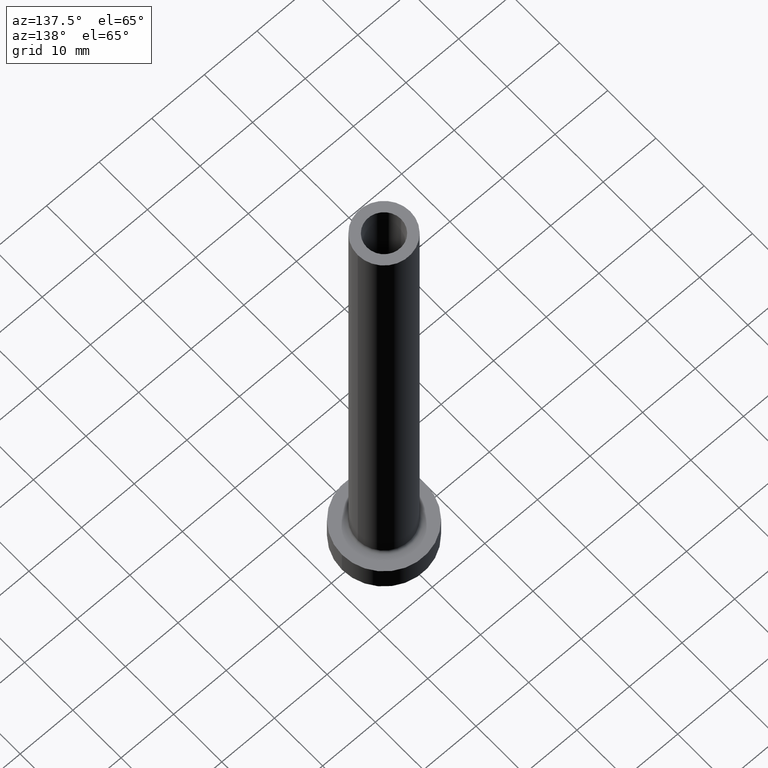
[diagram: clean part render]
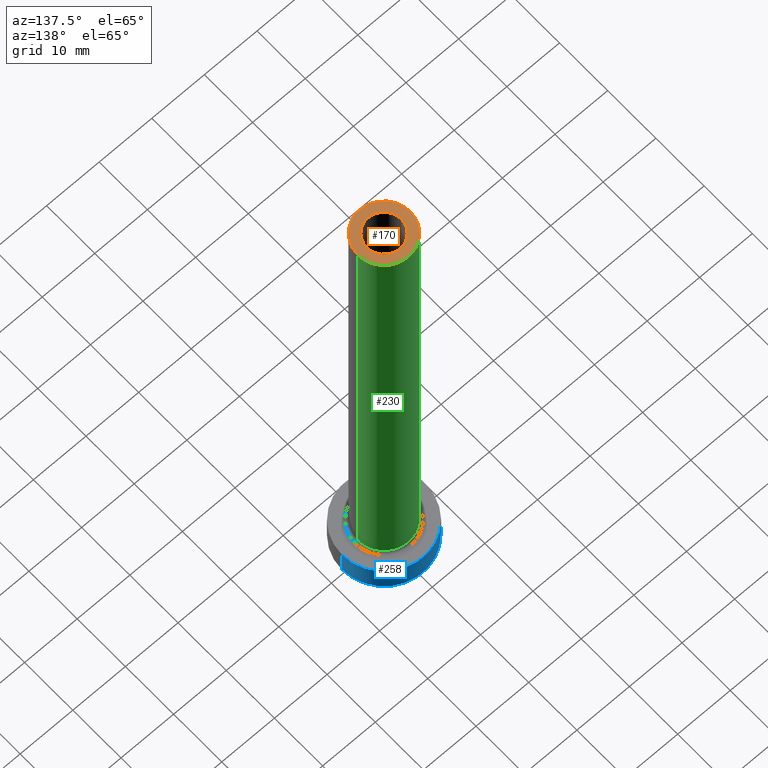
[diagram: same view with three faces highlighted in distinct colors, each labeled with its STEP entity id]
A machine part, auxiliary view with three faces highlighted in distinct colors.
Their STEP definitions:

[orange] entity #170 — the highlighted planar face has unit normal (0, 0, 1).
#4 = VERTEX_POINT ( 'NONE', #99 ) ;
#11 = DIRECTION ( 'NONE',  ( 1.000000000000000000, 0.000000000000000000, 0.000000000000000000 ) ) ;
#22 = VERTEX_POINT ( 'NONE', #244 ) ;
#23 = CIRCLE ( 'NONE', #83, 3.250000000000000444 ) ;
#24 = FACE_OUTER_BOUND ( 'NONE', #318, .T. ) ;
#31 = DIRECTION ( 'NONE',  ( 1.000000000000000000, 0.000000000000000000, -0.000000000000000000 ) ) ;
#33 = CARTESIAN_POINT ( 'NONE',  ( 0.000000000000000000, 0.000000000000000000, 100.0000000000000000 ) ) ;
#35 = DIRECTION ( 'NONE',  ( 0.000000000000000000, 0.000000000000000000, 1.000000000000000000 ) ) ;
#36 = DIRECTION ( 'NONE',  ( 0.000000000000000000, 0.000000000000000000, 1.000000000000000000 ) ) ;
#39 = CARTESIAN_POINT ( 'NONE',  ( 0.000000000000000000, 0.000000000000000000, 100.0000000000000000 ) ) ;
#41 = DIRECTION ( 'NONE',  ( 1.000000000000000000, 0.000000000000000000, 0.000000000000000000 ) ) ;
#53 = AXIS2_PLACEMENT_3D ( 'NONE', #161, #374, #11 ) ;
#73 = DIRECTION ( 'NONE',  ( 1.000000000000000000, 0.000000000000000000, 0.000000000000000000 ) ) ;
#75 = VERTEX_POINT ( 'NONE', #408 ) ;
#83 = AXIS2_PLACEMENT_3D ( 'NONE', #390, #35, #73 ) ;
#99 = CARTESIAN_POINT ( 'NONE',  ( -5.000000000000000000, 0.000000000000000000, 100.0000000000000000 ) ) ;
#109 = CARTESIAN_POINT ( 'NONE',  ( -3.250000000000000444, 0.000000000000000000, 100.0000000000000000 ) ) ;
#121 = CIRCLE ( 'NONE', #53, 5.000000000000000000 ) ;
#124 = ORIENTED_EDGE ( 'NONE', *, *, #393, .T. ) ;
#130 = AXIS2_PLACEMENT_3D ( 'NONE', #39, #355, #173 ) ;
#131 = FACE_BOUND ( 'NONE', #444, .T. ) ;
#150 = EDGE_CURVE ( 'NONE', #409, #22, #23, .T. ) ;
#161 = CARTESIAN_POINT ( 'NONE',  ( 0.000000000000000000, 0.000000000000000000, 100.0000000000000000 ) ) ;
#170 = ADVANCED_FACE ( 'NONE', ( #131, #24 ), #454, .T. ) ;
#173 = DIRECTION ( 'NONE',  ( 1.000000000000000000, 0.000000000000000000, 0.000000000000000000 ) ) ;
#204 = EDGE_CURVE ( 'NONE', #75, #4, #404, .T. ) ;
#244 = CARTESIAN_POINT ( 'NONE',  ( 3.250000000000000444, 3.980102097228897245E-16, 100.0000000000000000 ) ) ;
#249 = ORIENTED_EDGE ( 'NONE', *, *, #204, .T. ) ;
#264 = AXIS2_PLACEMENT_3D ( 'NONE', #33, #36, #41 ) ;
#277 = ORIENTED_EDGE ( 'NONE', *, *, #150, .F. ) ;
#289 = EDGE_CURVE ( 'NONE', #22, #409, #321, .T. ) ;
#318 = EDGE_LOOP ( 'NONE', ( #124, #249 ) ) ;
#321 = CIRCLE ( 'NONE', #130, 3.250000000000000444 ) ;
#350 = AXIS2_PLACEMENT_3D ( 'NONE', #446, #354, #31 ) ;
#354 = DIRECTION ( 'NONE',  ( 0.000000000000000000, 0.000000000000000000, 1.000000000000000000 ) ) ;
#355 = DIRECTION ( 'NONE',  ( 0.000000000000000000, 0.000000000000000000, 1.000000000000000000 ) ) ;
#374 = DIRECTION ( 'NONE',  ( 0.000000000000000000, 0.000000000000000000, 1.000000000000000000 ) ) ;
#390 = CARTESIAN_POINT ( 'NONE',  ( 0.000000000000000000, 0.000000000000000000, 100.0000000000000000 ) ) ;
#393 = EDGE_CURVE ( 'NONE', #4, #75, #121, .T. ) ;
#404 = CIRCLE ( 'NONE', #264, 5.000000000000000000 ) ;
#408 = CARTESIAN_POINT ( 'NONE',  ( 5.000000000000000000, 6.123233995736766282E-16, 100.0000000000000000 ) ) ;
#409 = VERTEX_POINT ( 'NONE', #109 ) ;
#444 = EDGE_LOOP ( 'NONE', ( #277, #459 ) ) ;
#446 = CARTESIAN_POINT ( 'NONE',  ( 0.000000000000000000, 0.000000000000000000, 100.0000000000000000 ) ) ;
#454 = PLANE ( 'NONE',  #350 ) ;
#459 = ORIENTED_EDGE ( 'NONE', *, *, #289, .F. ) ;

[blue] entity #258 — the highlighted cylindrical surface (partial cylindrical patch) has radius 8 mm, axis along (-0, -0, -1).
#5 = FACE_OUTER_BOUND ( 'NONE', #219, .T. ) ;
#14 = LINE ( 'NONE', #58, #351 ) ;
#16 = VERTEX_POINT ( 'NONE', #456 ) ;
#29 = CIRCLE ( 'NONE', #422, 8.000000000000000000 ) ;
#47 = DIRECTION ( 'NONE',  ( 1.000000000000000000, 0.000000000000000000, 0.000000000000000000 ) ) ;
#58 = CARTESIAN_POINT ( 'NONE',  ( -8.000000000000000000, 0.000000000000000000, 5.000000000000000000 ) ) ;
#61 = AXIS2_PLACEMENT_3D ( 'NONE', #251, #140, #285 ) ;
#88 = DIRECTION ( 'NONE',  ( 1.000000000000000000, 0.000000000000000000, 0.000000000000000000 ) ) ;
#97 = ORIENTED_EDGE ( 'NONE', *, *, #107, .F. ) ;
#107 = EDGE_CURVE ( 'NONE', #231, #310, #144, .T. ) ;
#117 = AXIS2_PLACEMENT_3D ( 'NONE', #194, #266, #88 ) ;
#136 = VECTOR ( 'NONE', #175, 1000.000000000000000 ) ;
#139 = CARTESIAN_POINT ( 'NONE',  ( 0.000000000000000000, 0.000000000000000000, 0.000000000000000000 ) ) ;
#140 = DIRECTION ( 'NONE',  ( -0.000000000000000000, -0.000000000000000000, -1.000000000000000000 ) ) ;
#144 = CIRCLE ( 'NONE', #117, 8.000000000000000000 ) ;
#160 = VERTEX_POINT ( 'NONE', #280 ) ;
#167 = ORIENTED_EDGE ( 'NONE', *, *, #207, .T. ) ;
#175 = DIRECTION ( 'NONE',  ( -0.000000000000000000, -0.000000000000000000, -1.000000000000000000 ) ) ;
#179 = DIRECTION ( 'NONE',  ( 0.000000000000000000, 0.000000000000000000, 1.000000000000000000 ) ) ;
#193 = DIRECTION ( 'NONE',  ( -0.000000000000000000, -0.000000000000000000, -1.000000000000000000 ) ) ;
#194 = CARTESIAN_POINT ( 'NONE',  ( 0.000000000000000000, 0.000000000000000000, 5.000000000000000000 ) ) ;
#207 = EDGE_CURVE ( 'NONE', #231, #16, #363, .T. ) ;
#219 = EDGE_LOOP ( 'NONE', ( #97, #167, #438, #432 ) ) ;
#231 = VERTEX_POINT ( 'NONE', #391 ) ;
#251 = CARTESIAN_POINT ( 'NONE',  ( 0.000000000000000000, 0.000000000000000000, 5.000000000000000000 ) ) ;
#258 = ADVANCED_FACE ( 'NONE', ( #5 ), #461, .T. ) ;
#266 = DIRECTION ( 'NONE',  ( 0.000000000000000000, 0.000000000000000000, 1.000000000000000000 ) ) ;
#280 = CARTESIAN_POINT ( 'NONE',  ( -8.000000000000000000, 0.000000000000000000, 0.000000000000000000 ) ) ;
#285 = DIRECTION ( 'NONE',  ( -1.000000000000000000, 0.000000000000000000, 0.000000000000000000 ) ) ;
#301 = EDGE_CURVE ( 'NONE', #16, #160, #29, .T. ) ;
#310 = VERTEX_POINT ( 'NONE', #335 ) ;
#335 = CARTESIAN_POINT ( 'NONE',  ( -8.000000000000000000, 0.000000000000000000, 5.000000000000000000 ) ) ;
#351 = VECTOR ( 'NONE', #193, 1000.000000000000000 ) ;
#361 = CARTESIAN_POINT ( 'NONE',  ( 8.000000000000000000, 9.797174393178825657E-16, 5.000000000000000000 ) ) ;
#363 = LINE ( 'NONE', #361, #136 ) ;
#391 = CARTESIAN_POINT ( 'NONE',  ( 8.000000000000000000, 9.797174393178825657E-16, 5.000000000000000000 ) ) ;
#413 = EDGE_CURVE ( 'NONE', #310, #160, #14, .T. ) ;
#422 = AXIS2_PLACEMENT_3D ( 'NONE', #139, #179, #47 ) ;
#432 = ORIENTED_EDGE ( 'NONE', *, *, #413, .F. ) ;
#438 = ORIENTED_EDGE ( 'NONE', *, *, #301, .T. ) ;
#456 = CARTESIAN_POINT ( 'NONE',  ( 8.000000000000000000, 9.797174393178825657E-16, 0.000000000000000000 ) ) ;
#461 = CYLINDRICAL_SURFACE ( 'NONE', #61, 8.000000000000000000 ) ;

[green] entity #230 — the highlighted cylindrical surface (edge-blend (fillet) strip) has radius 5 mm, axis along (-0, -0, -1).
#4 = VERTEX_POINT ( 'NONE', #99 ) ;
#6 = EDGE_LOOP ( 'NONE', ( #211, #337, #96, #348 ) ) ;
#33 = CARTESIAN_POINT ( 'NONE',  ( 0.000000000000000000, 0.000000000000000000, 100.0000000000000000 ) ) ;
#36 = DIRECTION ( 'NONE',  ( 0.000000000000000000, 0.000000000000000000, 1.000000000000000000 ) ) ;
#41 = DIRECTION ( 'NONE',  ( 1.000000000000000000, 0.000000000000000000, 0.000000000000000000 ) ) ;
#43 = VERTEX_POINT ( 'NONE', #296 ) ;
#50 = DIRECTION ( 'NONE',  ( 0.000000000000000000, 0.000000000000000000, 1.000000000000000000 ) ) ;
#55 = LINE ( 'NONE', #439, #395 ) ;
#75 = VERTEX_POINT ( 'NONE', #408 ) ;
#85 = AXIS2_PLACEMENT_3D ( 'NONE', #366, #50, #311 ) ;
#96 = ORIENTED_EDGE ( 'NONE', *, *, #360, .T. ) ;
#99 = CARTESIAN_POINT ( 'NONE',  ( -5.000000000000000000, 0.000000000000000000, 100.0000000000000000 ) ) ;
#114 = EDGE_CURVE ( 'NONE', #4, #43, #228, .T. ) ;
#123 = CARTESIAN_POINT ( 'NONE',  ( 5.000000000000000000, 6.123233995736766282E-16, 5.500000000000005329 ) ) ;
#142 = DIRECTION ( 'NONE',  ( -1.000000000000000000, 0.000000000000000000, 0.000000000000000000 ) ) ;
#164 = EDGE_CURVE ( 'NONE', #75, #331, #55, .T. ) ;
#169 = DIRECTION ( 'NONE',  ( -0.000000000000000000, -0.000000000000000000, -1.000000000000000000 ) ) ;
#204 = EDGE_CURVE ( 'NONE', #75, #4, #404, .T. ) ;
#211 = ORIENTED_EDGE ( 'NONE', *, *, #204, .F. ) ;
#228 = LINE ( 'NONE', #344, #440 ) ;
#230 = ADVANCED_FACE ( 'NONE', ( #291 ), #246, .T. ) ;
#246 = CYLINDRICAL_SURFACE ( 'NONE', #414, 5.000000000000000000 ) ;
#264 = AXIS2_PLACEMENT_3D ( 'NONE', #33, #36, #41 ) ;
#265 = DIRECTION ( 'NONE',  ( -0.000000000000000000, -0.000000000000000000, -1.000000000000000000 ) ) ;
#290 = CIRCLE ( 'NONE', #85, 5.000000000000000000 ) ;
#291 = FACE_OUTER_BOUND ( 'NONE', #6, .T. ) ;
#296 = CARTESIAN_POINT ( 'NONE',  ( -5.000000000000000000, 0.000000000000000000, 5.500000000000005329 ) ) ;
#311 = DIRECTION ( 'NONE',  ( 1.000000000000000000, 0.000000000000000000, 0.000000000000000000 ) ) ;
#322 = CARTESIAN_POINT ( 'NONE',  ( 0.000000000000000000, 0.000000000000000000, 100.0000000000000000 ) ) ;
#331 = VERTEX_POINT ( 'NONE', #123 ) ;
#337 = ORIENTED_EDGE ( 'NONE', *, *, #164, .T. ) ;
#344 = CARTESIAN_POINT ( 'NONE',  ( -5.000000000000000000, 0.000000000000000000, 100.0000000000000000 ) ) ;
#348 = ORIENTED_EDGE ( 'NONE', *, *, #114, .F. ) ;
#360 = EDGE_CURVE ( 'NONE', #331, #43, #290, .T. ) ;
#366 = CARTESIAN_POINT ( 'NONE',  ( 0.000000000000000000, 0.000000000000000000, 5.500000000000005329 ) ) ;
#395 = VECTOR ( 'NONE', #265, 1000.000000000000000 ) ;
#404 = CIRCLE ( 'NONE', #264, 5.000000000000000000 ) ;
#408 = CARTESIAN_POINT ( 'NONE',  ( 5.000000000000000000, 6.123233995736766282E-16, 100.0000000000000000 ) ) ;
#414 = AXIS2_PLACEMENT_3D ( 'NONE', #322, #425, #142 ) ;
#425 = DIRECTION ( 'NONE',  ( -0.000000000000000000, -0.000000000000000000, -1.000000000000000000 ) ) ;
#439 = CARTESIAN_POINT ( 'NONE',  ( 5.000000000000000000, 6.123233995736766282E-16, 100.0000000000000000 ) ) ;
#440 = VECTOR ( 'NONE', #169, 1000.000000000000000 ) ;